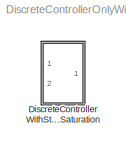
MODEL DiscreteControllerOnlyWithSFSaturation
KIND model
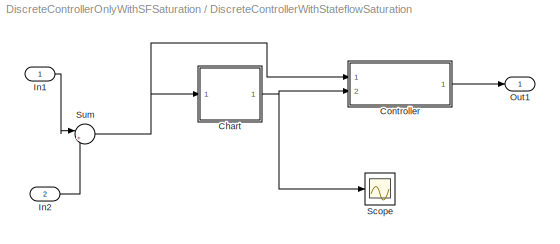
BLOCK [SubSystem] DiscreteControllerWithStateflowSaturation
  FunctionWithSeparateData = off
  MaskHideContents = off
  MinAlgLoopOccurrences = off
  Opaque = off
  Ports = [2, 1]
  PropExecContextOutsideSubsystem = off
  RTWSystemCode = Auto
  RequestExecContextInheritance = off
  SID = 1
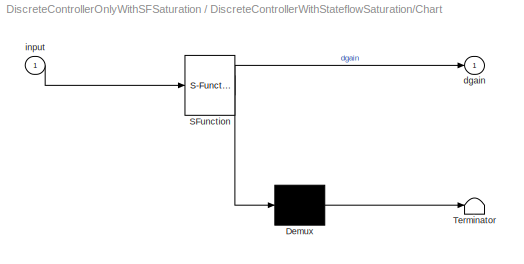
BLOCK [SubSystem] DiscreteControllerWithStateflowSaturation/Chart
  ErrorFcn = Stateflow.Translate.translate
  FunctionWithSeparateData = off
  MaskHideContents = off
  MinAlgLoopOccurrences = off
  Opaque = off
  PermitHierarchicalResolution = ExplicitOnly
  Ports = [1, 1]
  PropExecContextOutsideSubsystem = off
  RTWSystemCode = Auto
  RequestExecContextInheritance = off
  SFBlockType = Chart
  SID = 4
  TreatAsAtomicUnit = on
BLOCK [Demux] DiscreteControllerWithStateflowSaturation/Chart/ Demux 
  Outputs = 1
  Ports = [1, 1]
  SID = 4::48
BLOCK [S-Function] DiscreteControllerWithStateflowSaturation/Chart/ SFunction 
  EnableBusSupport = on
  FunctionName = sf_sfun
  PortCounts = [1 2]
  Ports = [1, 2]
  SID = 4::47
  Tag = Stateflow S-Function DiscreteControllerOnlyWithSFSaturation 2
BLOCK [Terminator] DiscreteControllerWithStateflowSaturation/Chart/ Terminator 
  SID = 4::49
BLOCK [Outport] DiscreteControllerWithStateflowSaturation/Chart/dgain
  IconDisplay = Port number
  SID = 4::46
BLOCK [Inport] DiscreteControllerWithStateflowSaturation/Chart/input
  IconDisplay = Port number
  SID = 4::45
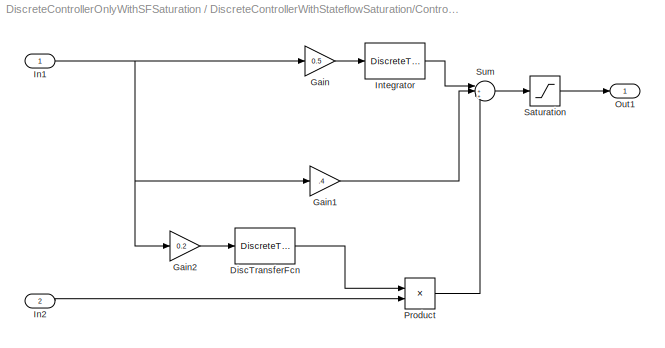
BLOCK [SubSystem] DiscreteControllerWithStateflowSaturation/Controller
  FunctionWithSeparateData = off
  MaskHideContents = off
  MinAlgLoopOccurrences = off
  Opaque = off
  Ports = [2, 1]
  PropExecContextOutsideSubsystem = off
  RTWSystemCode = Auto
  RequestExecContextInheritance = off
  SID = 5
BLOCK [DiscreteTransferFcn] DiscreteControllerWithStateflowSaturation/Controller/DiscTransferFcn
  Denominator = [0.01 0]
  InputPortMap = u0
  Numerator = [1 -1]
  Ports = [1, 1]
  SID = 8
  SampleTime = 0.01
BLOCK [Gain] DiscreteControllerWithStateflowSaturation/Controller/Gain
  Gain = 0.5
  OutDataTypeStr = Inherit: Inherit via internal rule
  ParamDataTypeStr = Inherit: Inherit via internal rule
  SID = 9
  SaturateOnIntegerOverflow = off
BLOCK [Gain] DiscreteControllerWithStateflowSaturation/Controller/Gain1
  Gain = .4
  OutDataTypeStr = Inherit: Inherit via internal rule
  ParamDataTypeStr = Inherit: Inherit via internal rule
  SID = 10
  SaturateOnIntegerOverflow = off
BLOCK [Gain] DiscreteControllerWithStateflowSaturation/Controller/Gain2
  Gain = 0.2
  OutDataTypeStr = Inherit: Inherit via internal rule
  ParamDataTypeStr = Inherit: Inherit via internal rule
  SID = 11
  SaturateOnIntegerOverflow = off
BLOCK [Inport] DiscreteControllerWithStateflowSaturation/Controller/In1
  IconDisplay = Port number
  SID = 6
BLOCK [Inport] DiscreteControllerWithStateflowSaturation/Controller/In2
  IconDisplay = Port number
  Port = 2
  SID = 7
BLOCK [DiscreteTransferFcn] DiscreteControllerWithStateflowSaturation/Controller/Integrator
  Denominator = [1 -1]
  InputPortMap = u0
  Numerator = [0.01]
  Ports = [1, 1]
  SID = 12
  SampleTime = 0.01
BLOCK [Outport] DiscreteControllerWithStateflowSaturation/Controller/Out1
  IconDisplay = Port number
  SID = 16
BLOCK [Product] DiscreteControllerWithStateflowSaturation/Controller/Product
  InputSameDT = off
  OutDataTypeStr = Inherit: Inherit via internal rule
  Ports = [2, 1]
  RndMeth = Floor
  SID = 13
  SaturateOnIntegerOverflow = off
BLOCK [Saturate] DiscreteControllerWithStateflowSaturation/Controller/Saturation
  InputPortMap = u0
  LowerLimit = 0
  Ports = [1, 1]
  SID = 14
  UpperLimit = 10
BLOCK [Sum] DiscreteControllerWithStateflowSaturation/Controller/Sum
  IconShape = round
  InputSameDT = off
  Inputs = |+++
  OutDataTypeStr = Inherit: Inherit via internal rule
  Ports = [3, 1]
  SID = 15
  SaturateOnIntegerOverflow = off
BLOCK [Inport] DiscreteControllerWithStateflowSaturation/In1
  IconDisplay = Port number
  OutDataTypeStr = double
  SID = 2
BLOCK [Inport] DiscreteControllerWithStateflowSaturation/In2
  IconDisplay = Port number
  OutDataTypeStr = double
  Port = 2
  SID = 3
BLOCK [Outport] DiscreteControllerWithStateflowSaturation/Out1
  IconDisplay = Port number
  OutDataTypeStr = double
  SID = 19
BLOCK [Scope] DiscreteControllerWithStateflowSaturation/Scope
  DataFormat = StructureWithTime
  Floating = off
  NumInputPorts = 1
  Ports = [1]
  SID = 17
  SampleTime = 0
  SaveName = ScopeData2
  ShowLegends = off
BLOCK [Sum] DiscreteControllerWithStateflowSaturation/Sum
  IconShape = round
  InputSameDT = off
  Inputs = |+-
  OutDataTypeStr = Inherit: Inherit via internal rule
  Ports = [2, 1]
  SID = 18
  SaturateOnIntegerOverflow = off
LINE DiscreteControllerWithStateflowSaturation/Chart/ Demux :1 -> DiscreteControllerWithStateflowSaturation/Chart/ Terminator :1
LINE DiscreteControllerWithStateflowSaturation/Chart/ SFunction :1 -> DiscreteControllerWithStateflowSaturation/Chart/ Demux :1
LINE DiscreteControllerWithStateflowSaturation/Chart/ SFunction :2 -> DiscreteControllerWithStateflowSaturation/Chart/dgain:1
LINE DiscreteControllerWithStateflowSaturation/Chart/input:1 -> DiscreteControllerWithStateflowSaturation/Chart/ SFunction :1
NET DiscreteControllerWithStateflowSaturation/Chart:1 -> DiscreteControllerWithStateflowSaturation/Controller:2, DiscreteControllerWithStateflowSaturation/Scope:1
LINE DiscreteControllerWithStateflowSaturation/Controller/DiscTransferFcn:1 -> DiscreteControllerWithStateflowSaturation/Controller/Product:1
LINE DiscreteControllerWithStateflowSaturation/Controller/Gain1:1 -> DiscreteControllerWithStateflowSaturation/Controller/Sum:2
LINE DiscreteControllerWithStateflowSaturation/Controller/Gain2:1 -> DiscreteControllerWithStateflowSaturation/Controller/DiscTransferFcn:1
LINE DiscreteControllerWithStateflowSaturation/Controller/Gain:1 -> DiscreteControllerWithStateflowSaturation/Controller/Integrator:1
NET DiscreteControllerWithStateflowSaturation/Controller/In1:1 -> DiscreteControllerWithStateflowSaturation/Controller/Gain1:1, DiscreteControllerWithStateflowSaturation/Controller/Gain2:1, DiscreteControllerWithStateflowSaturation/Controller/Gain:1
LINE DiscreteControllerWithStateflowSaturation/Controller/In2:1 -> DiscreteControllerWithStateflowSaturation/Controller/Product:2
LINE DiscreteControllerWithStateflowSaturation/Controller/Integrator:1 -> DiscreteControllerWithStateflowSaturation/Controller/Sum:1
LINE DiscreteControllerWithStateflowSaturation/Controller/Product:1 -> DiscreteControllerWithStateflowSaturation/Controller/Sum:3
LINE DiscreteControllerWithStateflowSaturation/Controller/Saturation:1 -> DiscreteControllerWithStateflowSaturation/Controller/Out1:1
LINE DiscreteControllerWithStateflowSaturation/Controller/Sum:1 -> DiscreteControllerWithStateflowSaturation/Controller/Saturation:1
LINE DiscreteControllerWithStateflowSaturation/Controller:1 -> DiscreteControllerWithStateflowSaturation/Out1:1
LINE DiscreteControllerWithStateflowSaturation/In1:1 -> DiscreteControllerWithStateflowSaturation/Sum:1
LINE DiscreteControllerWithStateflowSaturation/In2:1 -> DiscreteControllerWithStateflowSaturation/Sum:2
NET DiscreteControllerWithStateflowSaturation/Sum:1 -> DiscreteControllerWithStateflowSaturation/Chart:1, DiscreteControllerWithStateflowSaturation/Controller:1
note: NET lines group one-source signal fan-out (src -> all destinations, sorted); 1:1 wires keep LINE
CHART DiscreteControllerWithStateflowSaturation/Chart states=2 transitions=3
  STATE_LABEL 'GainOn\\nentry: dgain = 1'
  STATE_LABEL 'GainOff\\nentry: dgain = 0'
